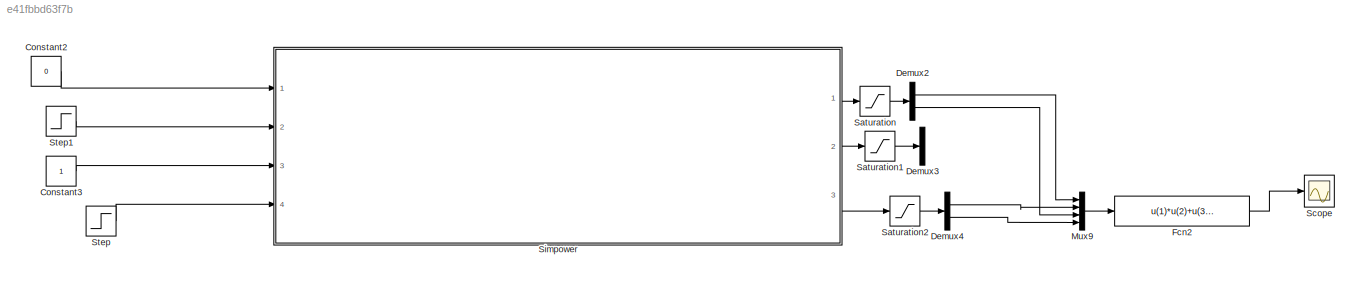
MODEL slx_e41fbbd63f7b
KIND model
CONFIG AbsTol = auto
CONFIG EnableMultiTasking = off
CONFIG FixedStep = 5e-6
CONFIG MaxStep = auto
CONFIG MinStep = 1e-5
CONFIG RelTol = 1e-3
CONFIG SampleTimeConstraint = Unconstrained
CONFIG Solver = FixedStepAuto
CONFIG SolverName = FixedStepAuto
CONFIG StartTime = 0.0
CONFIG StopTime = 12
BLOCK [Constant] Constant2
  Value = 0
BLOCK [Constant] Constant3
BLOCK [Demux] Demux2
  Outputs = 2
  Ports = [1, 2]
BLOCK [Demux] Demux3
  Outputs = 2
  Ports = [1, 2]
BLOCK [Demux] Demux4
  Outputs = 2
  Ports = [1, 2]
BLOCK [Fcn] Fcn2
  Expr = u(1)*u(2)+u(3)*u(4)
BLOCK [Mux] Mux9
  DisplayOption = bar
  Ports = [4, 1]
BLOCK [Saturate] Saturation
  LowerLimit = -1.5
  UpperLimit = 1.5
BLOCK [Saturate] Saturation1
  LowerLimit = -1.5
  UpperLimit = 1.5
BLOCK [Saturate] Saturation2
  LowerLimit = -1.5
  UpperLimit = 1.5
BLOCK [Scope] Scope
  Floating = off
  NumInputPorts = 1
  Ports = [1]
  ScopeSpecificationString = Simulink.scopes.TimeScopeBlockCfg('CurrentConfiguration', extmgr.ConfigurationSet(extmgr.Configuration('Core','General UI',true),extmgr.Configuration('Core','Source UI',true),extmgr.Configuration('Sources','WiredSimulink',true,'DataLoggingVariableName','ScopeData1'),extmgr.Configuration('Visuals','Time Domain',true,'SerializedDisplays',{struct('MinYLimReal','-0.0659','MaxYLimReal','0.7446','YLabel...<+1401ch>
BLOCK [SubSystem] Simpower
  Ports = [4, 3]
  RequestExecContextInheritance = off
BLOCK [Constant] Simpower/Constant
BLOCK [Reference] Simpower/Controlled Voltage Source  REF=powerlib/Electrical Sources/Controlled Voltage Source
  Ports = [1, 0, 0, 0, 0, 1, 1]
  SourceBlock = powerlib/Electrical Sources/Controlled Voltage Source
  SourceProductBaseCode = PS
  SourceType = Controlled Voltage Source
BLOCK [Reference] Simpower/Controlled Voltage Source1  REF=powerlib/Electrical Sources/Controlled Voltage Source
  Ports = [1, 0, 0, 0, 0, 1, 1]
  SourceBlock = powerlib/Electrical Sources/Controlled Voltage Source
  SourceProductBaseCode = PS
  SourceType = Controlled Voltage Source
BLOCK [Reference] Simpower/Controlled Voltage Source2  REF=powerlib/Electrical Sources/Controlled Voltage Source
  Ports = [1, 0, 0, 0, 0, 1, 1]
  SourceBlock = powerlib/Electrical Sources/Controlled Voltage Source
  SourceProductBaseCode = PS
  SourceType = Controlled Voltage Source
BLOCK [Reference] Simpower/Controlled Voltage Source3  REF=powerlib/Electrical Sources/Controlled Voltage Source
  Ports = [1, 0, 0, 0, 0, 1, 1]
  SourceBlock = powerlib/Electrical Sources/Controlled Voltage Source
  SourceProductBaseCode = PS
  SourceType = Controlled Voltage Source
BLOCK [Reference] Simpower/Controlled Voltage Source4  REF=powerlib/Electrical Sources/Controlled Voltage Source
  Ports = [1, 0, 0, 0, 0, 1, 1]
  SourceBlock = powerlib/Electrical Sources/Controlled Voltage Source
  SourceProductBaseCode = PS
  SourceType = Controlled Voltage Source
BLOCK [Reference] Simpower/Controlled Voltage Source5  REF=powerlib/Electrical Sources/Controlled Voltage Source
  Ports = [1, 0, 0, 0, 0, 1, 1]
  SourceBlock = powerlib/Electrical Sources/Controlled Voltage Source
  SourceProductBaseCode = PS
  SourceType = Controlled Voltage Source
BLOCK [SubSystem] Simpower/Current_calc
  Ports = [4, 1]
  RequestExecContextInheritance = off
BLOCK [Mux] Simpower/Current_calc/Mux
  DisplayOption = bar
  Inputs = 3
  Ports = [3, 1]
BLOCK [Mux] Simpower/Current_calc/Mux1
  DisplayOption = bar
  Inputs = 3
  Ports = [3, 1]
BLOCK [Mux] Simpower/Current_calc/Mux2
  DisplayOption = bar
  Inputs = 3
  Ports = [3, 1]
BLOCK [Mux] Simpower/Current_calc/Mux3
  DisplayOption = bar
  Inputs = 3
  Ports = [3, 1]
BLOCK [Mux] Simpower/Current_calc/Mux4
  DisplayOption = bar
  Inputs = 2
  Ports = [2, 1]
BLOCK [Scope] Simpower/Current_calc/Scope
  Floating = off
  NumInputPorts = 2
  Ports = [2]
  ScopeSpecificationString = Simulink.scopes.TimeScopeBlockCfg('CurrentConfiguration', extmgr.ConfigurationSet(extmgr.Configuration('Core','General UI',true),extmgr.Configuration('Core','Source UI',true),extmgr.Configuration('Sources','WiredSimulink',true,'DataLoggingVariableName','ScopeData4'),extmgr.Configuration('Visuals','Time Domain',true,'SerializedDisplays',{struct('MinYLimReal','-52.15344','MaxYLimReal','433.43523','Y...<+1423ch>
BLOCK [Sum] Simpower/Current_calc/Sum
  Inputs = |+-
  Ports = [2, 1]
BLOCK [Sum] Simpower/Current_calc/Sum1
  Inputs = |++
  Ports = [2, 1]
BLOCK [Fcn] Simpower/Current_calc/i_calc
  Expr = (u(1)*u(2))/(u(1)*u(1)+u(3)*u(3))
BLOCK [Fcn] Simpower/Current_calc/i_calc1
  Expr = (u(1)*u(2))/(u(3)*u(3)+u(1)*u(1))
BLOCK [Fcn] Simpower/Current_calc/i_calc2
  Expr = (u(3)*u(2))/(u(1)*u(1)+u(3)*u(3))
BLOCK [Fcn] Simpower/Current_calc/i_calc3
  Expr = (u(3)*u(2))/(u(3)*u(3)+u(1)*u(1))
BLOCK [Outport] Simpower/Current_calc/idqref
  VectorParamsAs1DForOutWhenUnconnected = off
BLOCK [Inport] Simpower/Current_calc/pm
BLOCK [Inport] Simpower/Current_calc/qref
  Port = 4
BLOCK [Inport] Simpower/Current_calc/vd
  Port = 2
BLOCK [Inport] Simpower/Current_calc/vq
  Port = 3
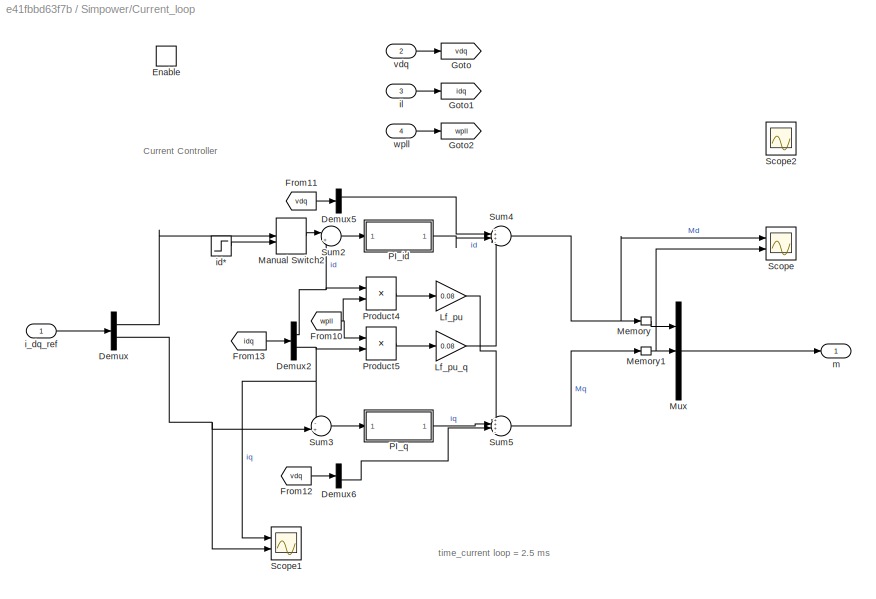
BLOCK [SubSystem] Simpower/Current_loop
  Ports = [4, 1, 1]
  RequestExecContextInheritance = off
BLOCK [Demux] Simpower/Current_loop/Demux
  Outputs = 2
  Ports = [1, 2]
BLOCK [Demux] Simpower/Current_loop/Demux2
  Outputs = 2
  Ports = [1, 2]
BLOCK [Demux] Simpower/Current_loop/Demux5
  Outputs = 2
  Ports = [1, 2]
BLOCK [Demux] Simpower/Current_loop/Demux6
  Outputs = 2
  Ports = [1, 2]
BLOCK [EnablePort] Simpower/Current_loop/Enable
  Ports = []
BLOCK [From] Simpower/Current_loop/From10
  GotoTag = wpll
BLOCK [From] Simpower/Current_loop/From11
  GotoTag = vdq
BLOCK [From] Simpower/Current_loop/From12
  GotoTag = vdq
BLOCK [From] Simpower/Current_loop/From13
  GotoTag = idq
BLOCK [Goto] Simpower/Current_loop/Goto
  GotoTag = vdq
BLOCK [Goto] Simpower/Current_loop/Goto1
  GotoTag = idq
BLOCK [Goto] Simpower/Current_loop/Goto2
  GotoTag = wpll
BLOCK [Gain] Simpower/Current_loop/Lf_pu
  Gain = 0.08
BLOCK [Gain] Simpower/Current_loop/Lf_pu_q
  Gain = 0.08
BLOCK [ManualSwitch] Simpower/Current_loop/Manual Switch2
BLOCK [Memory] Simpower/Current_loop/Memory
  InitialCondition = 1
BLOCK [Memory] Simpower/Current_loop/Memory1
BLOCK [Mux] Simpower/Current_loop/Mux
  DisplayOption = bar
  Inputs = 3
  Ports = [3, 1]
BLOCK [SubSystem] Simpower/Current_loop/PI_id
  Ports = [1, 1]
  RequestExecContextInheritance = off
BLOCK [Integrator] Simpower/Current_loop/PI_id/Integrator
  LowerSaturationLimit = -1
  Ports = [1, 1]
  UpperSaturationLimit = 1
BLOCK [Gain] Simpower/Current_loop/PI_id/KI
  Gain = 12.7200
BLOCK [Gain] Simpower/Current_loop/PI_id/KP
  Gain = 0.5399
BLOCK [Outport] Simpower/Current_loop/PI_id/Out1
  VectorParamsAs1DForOutWhenUnconnected = off
BLOCK [Scope] Simpower/Current_loop/PI_id/Scope
  Floating = off
  NumInputPorts = 2
  Ports = [2]
  ScopeSpecificationString = Simulink.scopes.TimeScopeBlockCfg('CurrentConfiguration', extmgr.ConfigurationSet(extmgr.Configuration('Core','General UI',true),extmgr.Configuration('Core','Source UI',true),extmgr.Configuration('Sources','WiredSimulink',true,'DataLoggingVariableName','ScopeData7'),extmgr.Configuration('Visuals','Time Domain',true,'SerializedDisplays',{struct('MinYLimReal','-0.19167','MaxYLimReal','1.35363','YLab...<+2112ch>
BLOCK [Scope] Simpower/Current_loop/PI_id/Scope1
  Floating = off
  NumInputPorts = 1
  Ports = [1]
  ScopeSpecificationString = Simulink.scopes.TimeScopeBlockCfg('CurrentConfiguration', extmgr.ConfigurationSet(extmgr.Configuration('Core','General UI',true),extmgr.Configuration('Core','Source UI',true),extmgr.Configuration('Sources','WiredSimulink',true,'DataLoggingVariableName','ScopeData3'),extmgr.Configuration('Visuals','Time Domain',true,'SerializedDisplays',{struct('MinYLimReal','-0.27741','MaxYLimReal','1.35832','YLab...<+1383ch>
BLOCK [Sum] Simpower/Current_loop/PI_id/Sum
  Inputs = |++
  Ports = [2, 1]
BLOCK [Inport] Simpower/Current_loop/PI_id/error
BLOCK [SubSystem] Simpower/Current_loop/PI_q
  Ports = [1, 1]
  RequestExecContextInheritance = off
BLOCK [Integrator] Simpower/Current_loop/PI_q/Integrator
  LowerSaturationLimit = -1
  Ports = [1, 1]
  UpperSaturationLimit = 1
BLOCK [Gain] Simpower/Current_loop/PI_q/KI
  Gain = 12.7200
BLOCK [Gain] Simpower/Current_loop/PI_q/KP
  Gain = 0.5399
BLOCK [Outport] Simpower/Current_loop/PI_q/Out1
  VectorParamsAs1DForOutWhenUnconnected = off
BLOCK [Scope] Simpower/Current_loop/PI_q/Scope
  Floating = off
  NumInputPorts = 2
  Ports = [2]
  ScopeSpecificationString = Simulink.scopes.TimeScopeBlockCfg('CurrentConfiguration', extmgr.ConfigurationSet(extmgr.Configuration('Core','General UI',true),extmgr.Configuration('Core','Source UI',true),extmgr.Configuration('Sources','WiredSimulink',true,'DataLoggingVariableName','ScopeData7'),extmgr.Configuration('Visuals','Time Domain',true,'SerializedDisplays',{struct('MinYLimReal','-0.07112','MaxYLimReal','0.10819','YLab...<+1446ch>
BLOCK [Sum] Simpower/Current_loop/PI_q/Sum
  Inputs = |++
  Ports = [2, 1]
BLOCK [Inport] Simpower/Current_loop/PI_q/error
BLOCK [Product] Simpower/Current_loop/Product4
  Ports = [2, 1]
BLOCK [Product] Simpower/Current_loop/Product5
  Ports = [2, 1]
BLOCK [Scope] Simpower/Current_loop/Scope
  Floating = off
  NumInputPorts = 2
  Ports = [2]
  ScopeSpecificationString = Simulink.scopes.TimeScopeBlockCfg('CurrentConfiguration', extmgr.ConfigurationSet(extmgr.Configuration('Core','General UI',true),extmgr.Configuration('Core','Source UI',true),extmgr.Configuration('Sources','WiredSimulink',true,'DataLoggingVariableName','ScopeData5'),extmgr.Configuration('Visuals','Time Domain',true,'SerializedDisplays',{struct('MinYLimReal','-11.85389','MaxYLimReal','46.04083','YL...<+2028ch>
BLOCK [Scope] Simpower/Current_loop/Scope1
  Floating = off
  NumInputPorts = 2
  Ports = [2]
  ScopeSpecificationString = Simulink.scopes.TimeScopeBlockCfg('CurrentConfiguration', extmgr.ConfigurationSet(extmgr.Configuration('Core','General UI',true),extmgr.Configuration('Core','Source UI',true),extmgr.Configuration('Sources','WiredSimulink',true,'DataLoggingVariableName','ScopeData6'),extmgr.Configuration('Visuals','Time Domain',true,'SerializedDisplays',{struct('MinYLimReal','-3.04691','MaxYLimReal','7.42216','YLab...<+1448ch>
BLOCK [Scope] Simpower/Current_loop/Scope2
  Floating = off
  NumInputPorts = 2
  Ports = [2]
  ScopeSpecificationString = Simulink.scopes.TimeScopeBlockCfg('CurrentConfiguration', extmgr.ConfigurationSet(extmgr.Configuration('Core','General UI',true),extmgr.Configuration('Core','Source UI',true),extmgr.Configuration('Sources','WiredSimulink',true,'DataLoggingVariableName','ScopeData1'),extmgr.Configuration('Visuals','Time Domain',true,'SerializedDisplays',{struct('MinYLimReal','-1.02633','MaxYLimReal','0.83238','YLab...<+1398ch>
BLOCK [Sum] Simpower/Current_loop/Sum2
  Inputs = |+-
  Ports = [2, 1]
BLOCK [Sum] Simpower/Current_loop/Sum3
  Inputs = -+|
  Ports = [2, 1]
BLOCK [Sum] Simpower/Current_loop/Sum4
  Inputs = -++-
  Ports = [4, 1]
BLOCK [Sum] Simpower/Current_loop/Sum5
  Inputs = +++-
  Ports = [4, 1]
BLOCK [Inport] Simpower/Current_loop/i_dq_ref
BLOCK [Step] Simpower/Current_loop/id*
  After = 0
  SampleTime = 0
BLOCK [Inport] Simpower/Current_loop/il
  Port = 3
BLOCK [Outport] Simpower/Current_loop/m
  VectorParamsAs1DForOutWhenUnconnected = off
BLOCK [Inport] Simpower/Current_loop/vdq
  Port = 2
BLOCK [Inport] Simpower/Current_loop/wpll
  Port = 4
BLOCK [Demux] Simpower/Demux
  Outputs = 3
  Ports = [1, 3]
BLOCK [Demux] Simpower/Demux1
  Outputs = 2
  Ports = [1, 2]
BLOCK [Demux] Simpower/Demux2
  Outputs = 3
  Ports = [1, 3]
BLOCK [Demux] Simpower/Demux3
  Outputs = 3
  Ports = [1, 3]
BLOCK [Demux] Simpower/Demux4
  Outputs = 3
  Ports = [1, 3]
BLOCK [Demux] Simpower/Demux5
  Outputs = 3
  Ports = [1, 3]
BLOCK [From] Simpower/From
  GotoTag = vod
BLOCK [From] Simpower/From1
  GotoTag = wt
BLOCK [From] Simpower/From10
  GotoTag = il
BLOCK [From] Simpower/From11
  GotoTag = vod
BLOCK [From] Simpower/From12
  GotoTag = break
BLOCK [From] Simpower/From13
  GotoTag = io
  TagVisibility = global
BLOCK [From] Simpower/From14
  GotoTag = wt
BLOCK [From] Simpower/From2
  GotoTag = vo
  TagVisibility = global
BLOCK [From] Simpower/From26
  GotoTag = w_esm
BLOCK [From] Simpower/From3
  GotoTag = wt
BLOCK [From] Simpower/From4
  GotoTag = ic
  TagVisibility = global
BLOCK [From] Simpower/From5
  GotoTag = wt
BLOCK [From] Simpower/From6
  GotoTag = wref
BLOCK [From] Simpower/From7
  GotoTag = gains_pll
BLOCK [From] Simpower/From8
  GotoTag = vod
BLOCK [From] Simpower/From9
  GotoTag = w_esm
BLOCK [Gain] Simpower/Gain2
  Gain = 563.3826
BLOCK [Gain] Simpower/Gain3
BLOCK [Goto] Simpower/Goto
  GotoTag = wt
BLOCK [Goto] Simpower/Goto1
  GotoTag = vod
BLOCK [Goto] Simpower/Goto2
  GotoTag = w_esm
BLOCK [Goto] Simpower/Goto3
  GotoTag = wref
BLOCK [Goto] Simpower/Goto4
  GotoTag = gains_pll
BLOCK [Goto] Simpower/Goto5
  GotoTag = il
BLOCK [Goto] Simpower/Goto6
  GotoTag = break
BLOCK [Reference] Simpower/Ground  REF=powerlib/Elements/Ground
  Ports = [0, 0, 0, 0, 0, 1]
  SourceBlock = powerlib/Elements/Ground
  SourceProductBaseCode = PS
  SourceType = Ground
BLOCK [Reference] Simpower/Ground2  REF=powerlib/Elements/Ground
  Ports = [0, 0, 0, 0, 0, 1]
  SourceBlock = powerlib/Elements/Ground
  SourceProductBaseCode = PS
  SourceType = Ground
BLOCK [Memory] Simpower/Memory
  InitialCondition = 1
BLOCK [Memory] Simpower/Memory1
BLOCK [Memory] Simpower/Memory2
  InitialCondition = 1
BLOCK [Memory] Simpower/Memory3
BLOCK [Memory] Simpower/Memory4
  InitialCondition = 1
BLOCK [Memory] Simpower/Memory5
BLOCK [Mux] Simpower/Mux
  DisplayOption = bar
  Inputs = 2
  Ports = [2, 1]
BLOCK [Mux] Simpower/Mux1
  DisplayOption = bar
  Inputs = 2
  Ports = [2, 1]
BLOCK [Mux] Simpower/Mux2
  DisplayOption = bar
  Inputs = 2
  Ports = [2, 1]
BLOCK [Outport] Simpower/Out1
  VectorParamsAs1DForOutWhenUnconnected = off
BLOCK [Outport] Simpower/Out2
  Port = 2
  VectorParamsAs1DForOutWhenUnconnected = off
BLOCK [Outport] Simpower/Out3
  Port = 3
  VectorParamsAs1DForOutWhenUnconnected = off
BLOCK [SubSystem] Simpower/PLL
  Ports = [3, 2]
  RequestExecContextInheritance = off
BLOCK [SubSystem] Simpower/PLL/Clasic_pll
  Ports = [3, 1, 0, 0, 0, 0, 0, 1]
  RequestExecContextInheritance = off
  TreatAsAtomicUnit = on
BLOCK [ActionPort] Simpower/PLL/Clasic_pll/Action Port
BLOCK [Inport] Simpower/PLL/Clasic_pll/In1
  Port = 3
BLOCK [SubSystem] Simpower/PLL/Clasic_pll/PLL
  Ports = [3, 1]
  RequestExecContextInheritance = off
BLOCK [Demux] Simpower/PLL/Clasic_pll/PLL/Demux
  Outputs = 2
  Ports = [1, 2]
BLOCK [Demux] Simpower/PLL/Clasic_pll/PLL/Demux1
  Outputs = 2
  Ports = [1, 2]
BLOCK [Inport] Simpower/PLL/Clasic_pll/PLL/In1
  Port = 3
BLOCK [Mux] Simpower/PLL/Clasic_pll/PLL/Mux2
  DisplayOption = bar
  Inputs = 2
  Ports = [2, 1]
BLOCK [SubSystem] Simpower/PLL/Clasic_pll/PLL/PI_Vqg
  Ports = [2, 1]
  RequestExecContextInheritance = off
BLOCK [Demux] Simpower/PLL/Clasic_pll/PLL/PI_Vqg/Demux
  Outputs = 2
  Ports = [1, 2]
BLOCK [Integrator] Simpower/PLL/Clasic_pll/PLL/PI_Vqg/Integrator
  Ports = [1, 1]
BLOCK [Product] Simpower/PLL/Clasic_pll/PLL/PI_Vqg/Product
  Ports = [2, 1]
BLOCK [Product] Simpower/PLL/Clasic_pll/PLL/PI_Vqg/Product1
  Ports = [2, 1]
BLOCK [Sum] Simpower/PLL/Clasic_pll/PLL/PI_Vqg/Sum
  Inputs = |++
  Ports = [2, 1]
BLOCK [Outport] Simpower/PLL/Clasic_pll/PLL/PI_Vqg/d_ws
  VectorParamsAs1DForOutWhenUnconnected = off
BLOCK [Inport] Simpower/PLL/Clasic_pll/PLL/PI_Vqg/error
BLOCK [Inport] Simpower/PLL/Clasic_pll/PLL/PI_Vqg/kp_ki
  Port = 2
BLOCK [Saturate] Simpower/PLL/Clasic_pll/PLL/Saturation
  LowerLimit = eps
  UpperLimit = inf
BLOCK [Scope] Simpower/PLL/Clasic_pll/PLL/Scope1
  Floating = off
  NumInputPorts = 1
  Ports = [1]
  ScopeSpecificationString = Simulink.scopes.TimeScopeBlockCfg('CurrentConfiguration', extmgr.ConfigurationSet(extmgr.Configuration('Core','General UI',true),extmgr.Configuration('Core','Source UI',true),extmgr.Configuration('Sources','WiredSimulink',true,'DataLoggingVariableName','ScopeData1'),extmgr.Configuration('Visuals','Time Domain',true,'SerializedDisplays',{struct('MinYLimReal','-0.01858','MaxYLimReal','0.01831','YLab...<+1449ch>
BLOCK [Sum] Simpower/PLL/Clasic_pll/PLL/Sum
  Inputs = |++
  Ports = [2, 1]
BLOCK [Terminator] Simpower/PLL/Clasic_pll/PLL/Terminator
BLOCK [Terminator] Simpower/PLL/Clasic_pll/PLL/Terminator1
BLOCK [Inport] Simpower/PLL/Clasic_pll/PLL/Vdq+
BLOCK [Inport] Simpower/PLL/Clasic_pll/PLL/wref
  Port = 2
BLOCK [Outport] Simpower/PLL/Clasic_pll/PLL/ws
  VectorParamsAs1DForOutWhenUnconnected = off
BLOCK [Inport] Simpower/PLL/Clasic_pll/Vodq
BLOCK [Outport] Simpower/PLL/Clasic_pll/w
  VectorParamsAs1DForOutWhenUnconnected = off
BLOCK [Inport] Simpower/PLL/Clasic_pll/wref
  Port = 2
BLOCK [Display] Simpower/PLL/Display
  Decimation = 1
  Ports = [1]
BLOCK [Gain] Simpower/PLL/Gain
  Gain = 2*pi*50
BLOCK [Merge] Simpower/PLL/M_w
  Ports = [2, 1]
BLOCK [Memory] Simpower/PLL/Memory
  InitialCondition = [ 0.001 0.0001]
BLOCK [SubSystem] Simpower/PLL/PLL_tang
  Ports = [3, 2, 0, 0, 0, 0, 0, 1]
  RequestExecContextInheritance = off
BLOCK [ActionPort] Simpower/PLL/PLL_tang/Action Port
BLOCK [Trigonometry] Simpower/PLL/PLL_tang/Atan2
  Operator = atan2
  Ports = [2, 1]
BLOCK [Constant] Simpower/PLL/PLL_tang/Constant
  OutDataTypeStr = double
  Value = 0
BLOCK [Demux] Simpower/PLL/PLL_tang/Demux
  Outputs = 2
  Ports = [1, 2]
BLOCK [Inport] Simpower/PLL/PLL_tang/In1
  Port = 3
BLOCK [SubSystem] Simpower/PLL/PLL_tang/LPF_vod
  Ports = [1, 1]
  RequestExecContextInheritance = off
BLOCK [Fcn] Simpower/PLL/PLL_tang/LPF_vod/Fcn
  Expr = - 500*u(1) + 500*u(2)
BLOCK [Integrator] Simpower/PLL/PLL_tang/LPF_vod/Integrator
  Ports = [1, 1]
BLOCK [Mux] Simpower/PLL/PLL_tang/LPF_vod/Mux
  DisplayOption = bar
  Inputs = 2
  Ports = [2, 1]
BLOCK [Inport] Simpower/PLL/PLL_tang/LPF_vod/sig
BLOCK [Outport] Simpower/PLL/PLL_tang/LPF_vod/sigf
  VectorParamsAs1DForOutWhenUnconnected = off
BLOCK [SubSystem] Simpower/PLL/PLL_tang/LPF_voq
  Ports = [1, 1]
  RequestExecContextInheritance = off
BLOCK [Fcn] Simpower/PLL/PLL_tang/LPF_voq/Fcn
  Expr = - 500*u(1) +500*u(2)
BLOCK [Integrator] Simpower/PLL/PLL_tang/LPF_voq/Integrator
  Ports = [1, 1]
BLOCK [Mux] Simpower/PLL/PLL_tang/LPF_voq/Mux
  DisplayOption = bar
  Inputs = 2
  Ports = [2, 1]
BLOCK [Inport] Simpower/PLL/PLL_tang/LPF_voq/sig
BLOCK [Outport] Simpower/PLL/PLL_tang/LPF_voq/sigf
  VectorParamsAs1DForOutWhenUnconnected = off
BLOCK [SubSystem] Simpower/PLL/PLL_tang/PI_pll
  Ports = [2, 1]
  RequestExecContextInheritance = off
BLOCK [Demux] Simpower/PLL/PLL_tang/PI_pll/Demux
  Outputs = 2
  Ports = [1, 2]
BLOCK [Inport] Simpower/PLL/PLL_tang/PI_pll/In1
  Port = 2
BLOCK [Integrator] Simpower/PLL/PLL_tang/PI_pll/Integrator
  Ports = [1, 1]
BLOCK [Product] Simpower/PLL/PLL_tang/PI_pll/Product
  Ports = [2, 1]
BLOCK [Product] Simpower/PLL/PLL_tang/PI_pll/Product1
  Ports = [2, 1]
BLOCK [Sum] Simpower/PLL/PLL_tang/PI_pll/Sum
  Inputs = |++
  Ports = [2, 1]
BLOCK [Inport] Simpower/PLL/PLL_tang/PI_pll/error
BLOCK [SubSystem] Simpower/PLL/PLL_tang/PI_pll/start
  Commented = on
  Ports = [1, 1]
  RequestExecContextInheritance = off
BLOCK [Inport] Simpower/PLL/PLL_tang/PI_pll/start/In1
BLOCK [Outport] Simpower/PLL/PLL_tang/PI_pll/start/Out1
  VectorParamsAs1DForOutWhenUnconnected = off
BLOCK [Product] Simpower/PLL/PLL_tang/PI_pll/start/Product
  Ports = [2, 1]
BLOCK [Step] Simpower/PLL/PLL_tang/PI_pll/start/Step
  SampleTime = 0
  Time = start
BLOCK [Outport] Simpower/PLL/PLL_tang/PI_pll/u
  VectorParamsAs1DForOutWhenUnconnected = off
BLOCK [Scope] Simpower/PLL/PLL_tang/Scope
  Floating = off
  NumInputPorts = 2
  Ports = [2]
  ScopeSpecificationString = Simulink.scopes.TimeScopeBlockCfg('CurrentConfiguration', extmgr.ConfigurationSet(extmgr.Configuration('Core','General UI',true),extmgr.Configuration('Core','Source UI',true),extmgr.Configuration('Sources','WiredSimulink',true,'DataLoggingVariableName','ScopeData5'),extmgr.Configuration('Visuals','Time Domain',true,'SerializedDisplays',{struct('MinYLimReal','-0.24454','MaxYLimReal','1.15735','YLab...<+1376ch>
BLOCK [Scope] Simpower/PLL/PLL_tang/Scope1
  Floating = off
  NumInputPorts = 2
  Ports = [2]
  ScopeSpecificationString = Simulink.scopes.TimeScopeBlockCfg('CurrentConfiguration', extmgr.ConfigurationSet(extmgr.Configuration('Core','General UI',true),extmgr.Configuration('Core','Source UI',true),extmgr.Configuration('Sources','WiredSimulink',true,'DataLoggingVariableName','ScopeData6'),extmgr.Configuration('Visuals','Time Domain',true,'SerializedDisplays',{struct('MinYLimReal','0.9981','MaxYLimReal','1.00058','YLabel...<+2018ch>
BLOCK [Sum] Simpower/PLL/PLL_tang/Sum
  Inputs = |++
  Ports = [2, 1]
BLOCK [Inport] Simpower/PLL/PLL_tang/Vo_dq
  Port = 2
BLOCK [Outport] Simpower/PLL/PLL_tang/W_pll
  VectorParamsAs1DForOutWhenUnconnected = off
BLOCK [Outport] Simpower/PLL/PLL_tang/dw
  Port = 2
  VectorParamsAs1DForOutWhenUnconnected = off
BLOCK [Sum] Simpower/PLL/PLL_tang/omega_pll
  Inputs = ++|
  Ports = [2, 1]
BLOCK [Inport] Simpower/PLL/PLL_tang/wref
BLOCK [Sum] Simpower/PLL/Sum2
  Inputs = +-
  Ports = [2, 1]
BLOCK [SwitchCase] Simpower/PLL/Switch Case
  CaseConditions = {1,0}
  Ports = [1, 2]
  ShowDefaultCase = off
BLOCK [Terminator] Simpower/PLL/Terminator
BLOCK [Constant] Simpower/PLL/case_pll
BLOCK [Inport] Simpower/PLL/gains
  Port = 3
BLOCK [Outport] Simpower/PLL/theta
  VectorParamsAs1DForOutWhenUnconnected = off
BLOCK [Integrator] Simpower/PLL/theta_
  InitialCondition = -pi/2
  Ports = [1, 1]
BLOCK [Inport] Simpower/PLL/vodq
  Port = 2
BLOCK [Outport] Simpower/PLL/w
  Port = 2
  VectorParamsAs1DForOutWhenUnconnected = off
BLOCK [Inport] Simpower/PLL/wref
BLOCK [SubSystem] Simpower/SOFIE 2
  Ports = [3, 2]
  RequestExecContextInheritance = off
BLOCK [Gain] Simpower/SOFIE 2/Gain
  Gain = 20
BLOCK [Gain] Simpower/SOFIE 2/Gain7
  Gain = 3.5*2
BLOCK [Mux] Simpower/SOFIE 2/Mux
  DisplayOption = bar
  Inputs = 2
  Ports = [2, 1]
BLOCK [Outport] Simpower/SOFIE 2/P*
  VectorParamsAs1DForOutWhenUnconnected = off
BLOCK [Outport] Simpower/SOFIE 2/PLL_gains
  Port = 2
  VectorParamsAs1DForOutWhenUnconnected = off
BLOCK [Scope] Simpower/SOFIE 2/Scope
  Floating = off
  NumInputPorts = 2
  Ports = [2]
  ScopeSpecificationString = Simulink.scopes.TimeScopeBlockCfg('CurrentConfiguration', extmgr.ConfigurationSet(extmgr.Configuration('Core','General UI',true),extmgr.Configuration('Core','Source UI',true),extmgr.Configuration('Sources','WiredSimulink',true,'DataLoggingVariableName','ScopeData2'),extmgr.Configuration('Visuals','Time Domain',true,'SerializedDisplays',{struct('MinYLimReal','0.9998','MaxYLimReal','1.00068','YLabel...<+1489ch>
BLOCK [Scope] Simpower/SOFIE 2/Scope1
  Floating = off
  NumInputPorts = 1
  Ports = [1]
  ScopeSpecificationString = Simulink.scopes.TimeScopeBlockCfg('CurrentConfiguration', extmgr.ConfigurationSet(extmgr.Configuration('Core','General UI',true),extmgr.Configuration('Core','Source UI',true),extmgr.Configuration('Sources','WiredSimulink',true,'DataLoggingVariableName','ScopeData1'),extmgr.Configuration('Visuals','Time Domain',true,'SerializedDisplays',{struct('MinYLimReal','-829.91141','MaxYLimReal','1112.94484',...<+1400ch>
BLOCK [SubSystem] Simpower/SOFIE 2/Second order low pass filter
  Ports = [3, 2]
  RequestExecContextInheritance = off
BLOCK [Fcn] Simpower/SOFIE 2/Second order low pass filter/Fcn
  Expr = u(1)*u(4)^2-u(2)*(2*u(5)*u(4))-u(3)*u(4)^2
BLOCK [Integrator] Simpower/SOFIE 2/Second order low pass filter/Integrator
  Ports = [1, 1]
BLOCK [Integrator] Simpower/SOFIE 2/Second order low pass filter/Integrator1
  InitialCondition = 1
  Ports = [1, 1]
BLOCK [Mux] Simpower/SOFIE 2/Second order low pass filter/Mux
  DisplayOption = bar
  Inputs = 5
  Ports = [5, 1]
BLOCK [Scope] Simpower/SOFIE 2/Second order low pass filter/Scope
  Floating = off
  NumInputPorts = 2
  Ports = [2]
  ScopeSpecificationString = Simulink.scopes.TimeScopeBlockCfg('CurrentConfiguration', extmgr.ConfigurationSet(extmgr.Configuration('Core','General UI',true),extmgr.Configuration('Core','Source UI',true),extmgr.Configuration('Sources','WiredSimulink',true,'DataLoggingVariableName','ScopeData2'),extmgr.Configuration('Visuals','Time Domain',true,'SerializedDisplays',{struct('MinYLimReal','0.97336','MaxYLimReal','1.23975','YLabe...<+2015ch>
BLOCK [Inport] Simpower/SOFIE 2/Second order low pass filter/d_pll
BLOCK [Outport] Simpower/SOFIE 2/Second order low pass filter/d`p
  Port = 2
  VectorParamsAs1DForOutWhenUnconnected = off
BLOCK [Outport] Simpower/SOFIE 2/Second order low pass filter/wf
  VectorParamsAs1DForOutWhenUnconnected = off
BLOCK [Inport] Simpower/SOFIE 2/Second order low pass filter/wn
  Port = 2
BLOCK [Inport] Simpower/SOFIE 2/Second order low pass filter/zeta
  Port = 3
BLOCK [Sum] Simpower/SOFIE 2/Sum
  Inputs = |+-
  Ports = [2, 1]
BLOCK [Sum] Simpower/SOFIE 2/Sum7
  Inputs = ++-
  Ports = [3, 1]
BLOCK [Constant] Simpower/SOFIE 2/ki_pll
  Value = 29.4731
BLOCK [Constant] Simpower/SOFIE 2/kp_pll
  Value = 0.5305
BLOCK [Inport] Simpower/SOFIE 2/pref
  Port = 2
BLOCK [Constant] Simpower/SOFIE 2/wn
  Value = 12.2311
BLOCK [Inport] Simpower/SOFIE 2/wpll
BLOCK [Inport] Simpower/SOFIE 2/wref
  Port = 3
BLOCK [Constant] Simpower/SOFIE 2/zeta
  Value = 0.94
BLOCK [Saturate] Simpower/Saturation
  LowerLimit = -2
  UpperLimit = 2
BLOCK [Scope] Simpower/Scope1
  Floating = off
  NumInputPorts = 1
  Ports = [1]
  ScopeSpecificationString = Simulink.scopes.TimeScopeBlockCfg('CurrentConfiguration', extmgr.ConfigurationSet(extmgr.Configuration('Core','General UI',true),extmgr.Configuration('Core','Source UI',true),extmgr.Configuration('Sources','WiredSimulink',true,'DataLoggingVariableName','ScopeData5'),extmgr.Configuration('Visuals','Time Domain',true,'SerializedDisplays',{struct('MinYLimReal','-3.17778','MaxYLimReal','2.98437','YLab...<+1394ch>
BLOCK [Scope] Simpower/Scope2
  Floating = off
  NumInputPorts = 1
  Ports = [1]
  ScopeSpecificationString = Simulink.scopes.TimeScopeBlockCfg('CurrentConfiguration', extmgr.ConfigurationSet(extmgr.Configuration('Core','General UI',true),extmgr.Configuration('Core','Source UI',true),extmgr.Configuration('Sources','WiredSimulink',true,'DataLoggingVariableName','ScopeData6'),extmgr.Configuration('Visuals','Time Domain',true,'SerializedDisplays',{struct('MinYLimReal','-1.5351','MaxYLimReal','1.44482','YLabe...<+1453ch>
BLOCK [Scope] Simpower/Scope3
  Floating = off
  NumInputPorts = 1
  Ports = [1]
  ScopeSpecificationString = Simulink.scopes.TimeScopeBlockCfg('CurrentConfiguration', extmgr.ConfigurationSet(extmgr.Configuration('Core','General UI',true),extmgr.Configuration('Core','Source UI',true),extmgr.Configuration('Sources','WiredSimulink',true,'DataLoggingVariableName','ScopeData7'),extmgr.Configuration('Visuals','Time Domain',true,'SerializedDisplays',{struct('MinYLimReal','-16.76989','MaxYLimReal','5.4064','YLab...<+1378ch>
BLOCK [Scope] Simpower/Scope4
  Floating = off
  NumInputPorts = 1
  Ports = [1]
  ScopeSpecificationString = Simulink.scopes.TimeScopeBlockCfg('CurrentConfiguration', extmgr.ConfigurationSet(extmgr.Configuration('Core','General UI',true),extmgr.Configuration('Core','Source UI',true),extmgr.Configuration('Sources','WiredSimulink',true,'DataLoggingVariableName','ScopeData8'),extmgr.Configuration('Visuals','Time Domain',true,'SerializedDisplays',{struct('MinYLimReal','-60396.87084','MaxYLimReal','60512.2358...<+1808ch>
BLOCK [Scope] Simpower/Scope5
  Floating = off
  NumInputPorts = 1
  Ports = [1]
  ScopeSpecificationString = Simulink.scopes.TimeScopeBlockCfg('CurrentConfiguration', extmgr.ConfigurationSet(extmgr.Configuration('Core','General UI',true),extmgr.Configuration('Core','Source UI',true),extmgr.Configuration('Sources','WiredSimulink',true,'DataLoggingVariableName','ScopeData3'),extmgr.Configuration('Visuals','Time Domain',true,'SerializedDisplays',{struct('MinYLimReal','-3.62586','MaxYLimReal','4.07075','YLab...<+1470ch>
BLOCK [Scope] Simpower/Scope6
  Floating = off
  NumInputPorts = 1
  Ports = [1]
  ScopeSpecificationString = Simulink.scopes.TimeScopeBlockCfg('CurrentConfiguration', extmgr.ConfigurationSet(extmgr.Configuration('Core','General UI',true),extmgr.Configuration('Core','Source UI',true),extmgr.Configuration('Sources','WiredSimulink',true,'DataLoggingVariableName','ScopeData1'),extmgr.Configuration('Visuals','Time Domain',true,'SerializedDisplays',{struct('MinYLimReal','-60396.87084','MaxYLimReal','60512.2358...<+1808ch>
BLOCK [Scope] Simpower/Scope7
  Floating = off
  NumInputPorts = 2
  Ports = [2]
  ScopeSpecificationString = Simulink.scopes.TimeScopeBlockCfg('CurrentConfiguration', extmgr.ConfigurationSet(extmgr.Configuration('Core','General UI',true),extmgr.Configuration('Core','Source UI',true),extmgr.Configuration('Sources','WiredSimulink',true,'DataLoggingVariableName','ScopeData1'),extmgr.Configuration('Visuals','Time Domain',true,'SerializedDisplays',{struct('MinYLimReal','-147.11168','MaxYLimReal','1308.29713',...<+2091ch>
BLOCK [Scope] Simpower/Scope8
  Floating = off
  NumInputPorts = 1
  Ports = [1]
  ScopeSpecificationString = Simulink.scopes.TimeScopeBlockCfg('CurrentConfiguration', extmgr.ConfigurationSet(extmgr.Configuration('Core','General UI',true),extmgr.Configuration('Core','Source UI',true),extmgr.Configuration('Sources','WiredSimulink',true,'DataLoggingVariableName','ScopeData2'),extmgr.Configuration('Visuals','Time Domain',true,'SerializedDisplays',{struct('MinYLimReal','-250001.04687','MaxYLimReal','250001.04...<+1512ch>
BLOCK [Step] Simpower/Step
  SampleTime = 0
  Time = 2
BLOCK [Switch] Simpower/Switch1
  Criteria = u2 > Threshold
  InputSameDT = off
  SaturateOnIntegerOverflow = off
  Threshold = 0.5
BLOCK [Reference] Simpower/Three-Phase Series RLC Branch  REF=powerlib/Elements/Three-Phase Series RLC Branch
  AttributesFormatString = \n
  Ports = [0, 0, 0, 0, 0, 3, 3]
  SourceBlock = powerlib/Elements/Three-Phase Series RLC Branch
  SourceProductBaseCode = PS
  SourceType = Three-Phase Series RLC Branch
BLOCK [Reference] Simpower/Three-Phase Series RLC Branch2  REF=powerlib/Elements/Three-Phase Series RLC Branch
  AttributesFormatString = \n
  Ports = [0, 0, 0, 0, 0, 3, 3]
  SourceBlock = powerlib/Elements/Three-Phase Series RLC Branch
  SourceProductBaseCode = PS
  SourceType = Three-Phase Series RLC Branch
BLOCK [Reference] Simpower/Three-Phase Sine Generator  REF=powerlib_meascontrol/Pulse & Signal Generators/Three-Phase Sine Generator
  Ports = [3, 2]
  SourceBlock = powerlib_meascontrol/Pulse & Signal Generators/Three-Phase Sine Generator
  SourceProductBaseCode = PS
  SourceType = Three-phase Sine Generator
BLOCK [Reference] Simpower/Three-Phase V-I Measurement  REF=powerlib/Measurements/Three-Phase V-I Measurement
  Ports = [0, 0, 0, 0, 0, 3, 3]
  SourceBlock = powerlib/Measurements/Three-Phase V-I Measurement
  SourceProductBaseCode = PS
  SourceType = Three-Phase VI Measurement
BLOCK [Reference] Simpower/Three-Phase V-I Measurement1  REF=powerlib/Measurements/Three-Phase V-I Measurement
  Ports = [0, 0, 0, 0, 0, 3, 3]
  SourceBlock = powerlib/Measurements/Three-Phase V-I Measurement
  SourceProductBaseCode = PS
  SourceType = Three-Phase VI Measurement
BLOCK [Gain] Simpower/Vb_pp
  Gain = 563.3826
BLOCK [Reference] Simpower/abc to dq0  REF=powerlib_meascontrol/Transformations/abc to dq0
  Ports = [2, 1]
  SourceBlock = powerlib_meascontrol/Transformations/abc to dq0
  SourceProductBaseCode = PS
  SourceType = abc to dq0 Transformation
BLOCK [Reference] Simpower/abc to dq1  REF=powerlib_meascontrol/Transformations/abc to dq0
  Ports = [2, 1]
  SourceBlock = powerlib_meascontrol/Transformations/abc to dq0
  SourceProductBaseCode = PS
  SourceType = abc to dq0 Transformation
BLOCK [Reference] Simpower/abc to dq2  REF=powerlib_meascontrol/Transformations/abc to dq0
  Ports = [2, 1]
  SourceBlock = powerlib_meascontrol/Transformations/abc to dq0
  SourceProductBaseCode = PS
  SourceType = abc to dq0 Transformation
BLOCK [Reference] Simpower/dq0 to abc  REF=powerlib_meascontrol/Transformations/dq0 to abc
  Ports = [2, 1]
  SourceBlock = powerlib_meascontrol/Transformations/dq0 to abc
  SourceProductBaseCode = PS
  SourceType = dq0 to abc Transformation
BLOCK [Gain] Simpower/frequency
  Gain = 50
BLOCK [Reference] Simpower/powergui  REF=powerlib/powergui
  Ports = []
  Priority = 1
  SourceBlock = powerlib/powergui
  SourceProductBaseCode = PS
  SourceType = PSB option menu block
BLOCK [Inport] Simpower/pref
  Port = 2
BLOCK [Inport] Simpower/qref
BLOCK [Inport] Simpower/wg
  Port = 4
BLOCK [Inport] Simpower/wref
  Port = 3
BLOCK [Step] Step
  After = 1-0.01
  Before = 1
  SampleTime = 0
  Time = 4
BLOCK [Step] Step1
  After = 0.1
  SampleTime = 0
  Time = 8
ANNOTATION Simpower: Second-order filter-based inertia emulation (SOFIE) for low inertia power systems
ANNOTATION Simpower: Corresponding author (e-mail: <email>) D. A. Aragon-Sotelo and S. Ceballos are with Tecnalia, Basque Research and Technology Alliance (BRTA), Parque Tecnológico de Bizkaia, 48160 Derio, Spain E. Unamuno and J. A. Barrena are with the Electronics and Computing Department, Mondragon Unibertsitatea, 20500 Arrasate-Mondragón, S
ANNOTATION Simpower: D. A. Aragón-Sotelo*, E. Unamuno, S. Ceballos, J. A. Barrena
ANNOTATION Simpower/Current_loop: Current Controller
ANNOTATION Simpower/Current_loop: time_current loop = 2.5 ms
ANNOTATION Simpower/PLL/PLL_tang/PI_pll: 0.280199718443820
ANNOTATION Simpower/PLL/PLL_tang/PI_pll: 8.791017962377130
ANNOTATION Simpower/SOFIE 2: parameters calculated with eq: 15 and 16
ANNOTATION Simpower/SOFIE 2: tpll=0.01 s
LINE Constant2:1 -> Simpower:1
LINE Constant3:1 -> Simpower:3
LINE Demux2:1 -> Mux9:1
LINE Demux2:2 -> Mux9:3
LINE Demux4:1 -> Mux9:2
LINE Demux4:2 -> Mux9:4
LINE Fcn2:1 -> Scope:1
LINE Mux9:1 -> Fcn2:1
LINE Saturation1:1 -> Demux3:1
LINE Saturation2:1 -> Demux4:1
LINE Saturation:1 -> Demux2:1
LINE Simpower/Constant:1 -> Simpower/Vb_pp:1
LINE Simpower/Current_calc/Mux1:1 -> Simpower/Current_calc/i_calc1:1
LINE Simpower/Current_calc/Mux2:1 -> Simpower/Current_calc/i_calc2:1
LINE Simpower/Current_calc/Mux3:1 -> Simpower/Current_calc/i_calc3:1
LINE Simpower/Current_calc/Mux4:1 -> Simpower/Current_calc/idqref:1
LINE Simpower/Current_calc/Mux:1 -> Simpower/Current_calc/i_calc:1
LINE Simpower/Current_calc/Sum1:1 -> Simpower/Current_calc/Mux4:2
NET Simpower/Current_calc/Sum:1 -> Simpower/Current_calc/Mux4:1, Simpower/Current_calc/Scope:2
LINE Simpower/Current_calc/i_calc1:1 -> Simpower/Current_calc/Sum:2
LINE Simpower/Current_calc/i_calc2:1 -> Simpower/Current_calc/Sum1:1
LINE Simpower/Current_calc/i_calc3:1 -> Simpower/Current_calc/Sum1:2
LINE Simpower/Current_calc/i_calc:1 -> Simpower/Current_calc/Sum:1
NET Simpower/Current_calc/pm:1 -> Simpower/Current_calc/Mux2:2, Simpower/Current_calc/Mux:2, Simpower/Current_calc/Scope:1
NET Simpower/Current_calc/qref:1 -> Simpower/Current_calc/Mux1:2, Simpower/Current_calc/Mux3:2
NET Simpower/Current_calc/vd:1 -> Simpower/Current_calc/Mux1:3, Simpower/Current_calc/Mux2:1, Simpower/Current_calc/Mux3:3, Simpower/Current_calc/Mux:1
NET Simpower/Current_calc/vq:1 -> Simpower/Current_calc/Mux1:1, Simpower/Current_calc/Mux2:3, Simpower/Current_calc/Mux3:1, Simpower/Current_calc/Mux:3
LINE Simpower/Current_calc:1 -> Simpower/Saturation:1
NET Simpower/Current_loop/Demux2:1 -> Simpower/Current_loop/Product4:1, Simpower/Current_loop/Sum2:2
NET Simpower/Current_loop/Demux2:2 -> Simpower/Current_loop/Product5:2, Simpower/Current_loop/Scope1:1, Simpower/Current_loop/Sum3:1
LINE Simpower/Current_loop/Demux5:1 -> Simpower/Current_loop/Sum4:2
LINE Simpower/Current_loop/Demux6:2 -> Simpower/Current_loop/Sum5:3
LINE Simpower/Current_loop/Demux:1 -> Simpower/Current_loop/Manual Switch2:1
NET Simpower/Current_loop/Demux:2 -> Simpower/Current_loop/Scope1:2, Simpower/Current_loop/Sum3:2
NET Simpower/Current_loop/From10:1 -> Simpower/Current_loop/Product4:2, Simpower/Current_loop/Product5:1
LINE Simpower/Current_loop/From11:1 -> Simpower/Current_loop/Demux5:1
LINE Simpower/Current_loop/From12:1 -> Simpower/Current_loop/Demux6:1
LINE Simpower/Current_loop/From13:1 -> Simpower/Current_loop/Demux2:1
LINE Simpower/Current_loop/Lf_pu:1 -> Simpower/Current_loop/Sum5:1
LINE Simpower/Current_loop/Lf_pu_q:1 -> Simpower/Current_loop/Sum4:4
LINE Simpower/Current_loop/Manual Switch2:1 -> Simpower/Current_loop/Sum2:1
NET Simpower/Current_loop/Memory1:1 -> Simpower/Current_loop/Mux:2, Simpower/Current_loop/Scope:2
LINE Simpower/Current_loop/Memory:1 -> Simpower/Current_loop/Mux:1
LINE Simpower/Current_loop/Mux:1 -> Simpower/Current_loop/m:1
NET Simpower/Current_loop/PI_id/Integrator:1 -> Simpower/Current_loop/PI_id/Scope:2, Simpower/Current_loop/PI_id/Sum:2
LINE Simpower/Current_loop/PI_id/KI:1 -> Simpower/Current_loop/PI_id/Integrator:1
LINE Simpower/Current_loop/PI_id/KP:1 -> Simpower/Current_loop/PI_id/Sum:1
NET Simpower/Current_loop/PI_id/Sum:1 -> Simpower/Current_loop/PI_id/Out1:1, Simpower/Current_loop/PI_id/Scope:1
NET Simpower/Current_loop/PI_id/error:1 -> Simpower/Current_loop/PI_id/KI:1, Simpower/Current_loop/PI_id/KP:1, Simpower/Current_loop/PI_id/Scope1:1
LINE Simpower/Current_loop/PI_id:1 -> Simpower/Current_loop/Sum4:3
NET Simpower/Current_loop/PI_q/Integrator:1 -> Simpower/Current_loop/PI_q/Scope:1, Simpower/Current_loop/PI_q/Sum:2
LINE Simpower/Current_loop/PI_q/KI:1 -> Simpower/Current_loop/PI_q/Integrator:1
LINE Simpower/Current_loop/PI_q/KP:1 -> Simpower/Current_loop/PI_q/Sum:1
LINE Simpower/Current_loop/PI_q/Sum:1 -> Simpower/Current_loop/PI_q/Out1:1
NET Simpower/Current_loop/PI_q/error:1 -> Simpower/Current_loop/PI_q/KI:1, Simpower/Current_loop/PI_q/KP:1, Simpower/Current_loop/PI_q/Scope:2
LINE Simpower/Current_loop/PI_q:1 -> Simpower/Current_loop/Sum5:2
LINE Simpower/Current_loop/Product4:1 -> Simpower/Current_loop/Lf_pu:1
LINE Simpower/Current_loop/Product5:1 -> Simpower/Current_loop/Lf_pu_q:1
LINE Simpower/Current_loop/Sum2:1 -> Simpower/Current_loop/PI_id:1
LINE Simpower/Current_loop/Sum3:1 -> Simpower/Current_loop/PI_q:1
NET Simpower/Current_loop/Sum4:1 -> Simpower/Current_loop/Memory:1, Simpower/Current_loop/Scope:1
LINE Simpower/Current_loop/Sum5:1 -> Simpower/Current_loop/Memory1:1
LINE Simpower/Current_loop/i_dq_ref:1 -> Simpower/Current_loop/Demux:1
LINE Simpower/Current_loop/id*:1 -> Simpower/Current_loop/Manual Switch2:2
LINE Simpower/Current_loop/il:1 -> Simpower/Current_loop/Goto1:1
LINE Simpower/Current_loop/vdq:1 -> Simpower/Current_loop/Goto:1
LINE Simpower/Current_loop/wpll:1 -> Simpower/Current_loop/Goto2:1
LINE Simpower/Current_loop:1 -> Simpower/Switch1:1
LINE Simpower/Demux1:1 -> Simpower/Current_calc:2
LINE Simpower/Demux1:2 -> Simpower/Current_calc:3
LINE Simpower/Demux2:1 -> Simpower/Memory4:1
LINE Simpower/Demux2:2 -> Simpower/Memory5:1
LINE Simpower/Demux3:1 -> Simpower/Memory:1
LINE Simpower/Demux3:2 -> Simpower/Memory1:1
LINE Simpower/Demux4:1 -> Simpower/Memory2:1
LINE Simpower/Demux4:2 -> Simpower/Memory3:1
LINE Simpower/Demux5:1 -> Simpower/Controlled Voltage Source5:1
LINE Simpower/Demux5:2 -> Simpower/Controlled Voltage Source4:1
LINE Simpower/Demux5:3 -> Simpower/Controlled Voltage Source3:1
LINE Simpower/Demux:1 -> Simpower/Controlled Voltage Source2:1
LINE Simpower/Demux:2 -> Simpower/Controlled Voltage Source1:1
LINE Simpower/Demux:3 -> Simpower/Controlled Voltage Source:1
LINE Simpower/From10:1 -> Simpower/Current_loop:3
LINE Simpower/From11:1 -> Simpower/Current_loop:2
NET Simpower/From12:1 -> Simpower/Current_loop:enable, Simpower/Switch1:2
NET Simpower/From13:1 -> Simpower/Scope6:1, Simpower/abc to dq2:1
LINE Simpower/From14:1 -> Simpower/abc to dq2:2
LINE Simpower/From1:1 -> Simpower/dq0 to abc:2
LINE Simpower/From26:1 -> Simpower/SOFIE 2:1
LINE Simpower/From2:1 -> Simpower/Gain3:1
LINE Simpower/From3:1 -> Simpower/abc to dq0:2
NET Simpower/From4:1 -> Simpower/Scope4:1, Simpower/abc to dq1:1
LINE Simpower/From5:1 -> Simpower/abc to dq1:2
LINE Simpower/From6:1 -> Simpower/PLL:1
LINE Simpower/From7:1 -> Simpower/PLL:3
LINE Simpower/From8:1 -> Simpower/PLL:2
LINE Simpower/From9:1 -> Simpower/Current_loop:4
LINE Simpower/From:1 -> Simpower/Demux1:1
LINE Simpower/Gain2:1 -> Simpower/Demux5:1
NET Simpower/Gain3:1 -> Simpower/Scope2:1, Simpower/abc to dq0:1
LINE Simpower/Memory1:1 -> Simpower/Mux:2
LINE Simpower/Memory2:1 -> Simpower/Mux2:1
LINE Simpower/Memory3:1 -> Simpower/Mux2:2
LINE Simpower/Memory4:1 -> Simpower/Mux1:1
LINE Simpower/Memory5:1 -> Simpower/Mux1:2
LINE Simpower/Memory:1 -> Simpower/Mux:1
LINE Simpower/Mux1:1 -> Simpower/Out2:1
NET Simpower/Mux2:1 -> Simpower/Goto5:1, Simpower/Out3:1, Simpower/Scope3:1
NET Simpower/Mux:1 -> Simpower/Goto1:1, Simpower/Out1:1, Simpower/Scope1:1
LINE Simpower/PLL/Clasic_pll/In1:1 -> Simpower/PLL/Clasic_pll/PLL:3
LINE Simpower/PLL/Clasic_pll/PLL/Demux1:1 -> Simpower/PLL/Clasic_pll/PLL/Saturation:1
LINE Simpower/PLL/Clasic_pll/PLL/Demux1:2 -> Simpower/PLL/Clasic_pll/PLL/Mux2:2
LINE Simpower/PLL/Clasic_pll/PLL/Demux:1 -> Simpower/PLL/Clasic_pll/PLL/Terminator:1
LINE Simpower/PLL/Clasic_pll/PLL/Demux:2 -> Simpower/PLL/Clasic_pll/PLL/PI_Vqg:1
LINE Simpower/PLL/Clasic_pll/PLL/In1:1 -> Simpower/PLL/Clasic_pll/PLL/PI_Vqg:2
NET Simpower/PLL/Clasic_pll/PLL/Mux2:1 -> Simpower/PLL/Clasic_pll/PLL/Scope1:1, Simpower/PLL/Clasic_pll/PLL/Terminator1:1
LINE Simpower/PLL/Clasic_pll/PLL/PI_Vqg/Demux:1 -> Simpower/PLL/Clasic_pll/PLL/PI_Vqg/Product:1
LINE Simpower/PLL/Clasic_pll/PLL/PI_Vqg/Demux:2 -> Simpower/PLL/Clasic_pll/PLL/PI_Vqg/Product1:2
LINE Simpower/PLL/Clasic_pll/PLL/PI_Vqg/Integrator:1 -> Simpower/PLL/Clasic_pll/PLL/PI_Vqg/Sum:2
LINE Simpower/PLL/Clasic_pll/PLL/PI_Vqg/Product1:1 -> Simpower/PLL/Clasic_pll/PLL/PI_Vqg/Integrator:1
LINE Simpower/PLL/Clasic_pll/PLL/PI_Vqg/Product:1 -> Simpower/PLL/Clasic_pll/PLL/PI_Vqg/Sum:1
LINE Simpower/PLL/Clasic_pll/PLL/PI_Vqg/Sum:1 -> Simpower/PLL/Clasic_pll/PLL/PI_Vqg/d_ws:1
NET Simpower/PLL/Clasic_pll/PLL/PI_Vqg/error:1 -> Simpower/PLL/Clasic_pll/PLL/PI_Vqg/Product1:1, Simpower/PLL/Clasic_pll/PLL/PI_Vqg/Product:2
LINE Simpower/PLL/Clasic_pll/PLL/PI_Vqg/kp_ki:1 -> Simpower/PLL/Clasic_pll/PLL/PI_Vqg/Demux:1
LINE Simpower/PLL/Clasic_pll/PLL/PI_Vqg:1 -> Simpower/PLL/Clasic_pll/PLL/Sum:1
LINE Simpower/PLL/Clasic_pll/PLL/Saturation:1 -> Simpower/PLL/Clasic_pll/PLL/Mux2:1
LINE Simpower/PLL/Clasic_pll/PLL/Sum:1 -> Simpower/PLL/Clasic_pll/PLL/ws:1
NET Simpower/PLL/Clasic_pll/PLL/Vdq+:1 -> Simpower/PLL/Clasic_pll/PLL/Demux1:1, Simpower/PLL/Clasic_pll/PLL/Demux:1
LINE Simpower/PLL/Clasic_pll/PLL/wref:1 -> Simpower/PLL/Clasic_pll/PLL/Sum:2
LINE Simpower/PLL/Clasic_pll/PLL:1 -> Simpower/PLL/Clasic_pll/w:1
LINE Simpower/PLL/Clasic_pll/Vodq:1 -> Simpower/PLL/Clasic_pll/PLL:1
LINE Simpower/PLL/Clasic_pll/wref:1 -> Simpower/PLL/Clasic_pll/PLL:2
LINE Simpower/PLL/Clasic_pll:1 -> Simpower/PLL/M_w:1
LINE Simpower/PLL/Gain:1 -> Simpower/PLL/theta_:1
NET Simpower/PLL/M_w:1 -> Simpower/PLL/Sum2:1, Simpower/PLL/w:1
NET Simpower/PLL/Memory:1 -> Simpower/PLL/Clasic_pll:3, Simpower/PLL/Display:1, Simpower/PLL/PLL_tang:3
LINE Simpower/PLL/PLL_tang/Atan2:1 -> Simpower/PLL/PLL_tang/Sum:2
LINE Simpower/PLL/PLL_tang/Constant:1 -> Simpower/PLL/PLL_tang/Sum:1
LINE Simpower/PLL/PLL_tang/Demux:1 -> Simpower/PLL/PLL_tang/LPF_voq:1
LINE Simpower/PLL/PLL_tang/Demux:2 -> Simpower/PLL/PLL_tang/LPF_vod:1
LINE Simpower/PLL/PLL_tang/In1:1 -> Simpower/PLL/PLL_tang/PI_pll:2
LINE Simpower/PLL/PLL_tang/LPF_vod/Fcn:1 -> Simpower/PLL/PLL_tang/LPF_vod/Integrator:1
NET Simpower/PLL/PLL_tang/LPF_vod/Integrator:1 -> Simpower/PLL/PLL_tang/LPF_vod/Mux:1, Simpower/PLL/PLL_tang/LPF_vod/sigf:1
LINE Simpower/PLL/PLL_tang/LPF_vod/Mux:1 -> Simpower/PLL/PLL_tang/LPF_vod/Fcn:1
LINE Simpower/PLL/PLL_tang/LPF_vod/sig:1 -> Simpower/PLL/PLL_tang/LPF_vod/Mux:2
NET Simpower/PLL/PLL_tang/LPF_vod:1 -> Simpower/PLL/PLL_tang/Atan2:1, Simpower/PLL/PLL_tang/Scope:1
LINE Simpower/PLL/PLL_tang/LPF_voq/Fcn:1 -> Simpower/PLL/PLL_tang/LPF_voq/Integrator:1
NET Simpower/PLL/PLL_tang/LPF_voq/Integrator:1 -> Simpower/PLL/PLL_tang/LPF_voq/Mux:1, Simpower/PLL/PLL_tang/LPF_voq/sigf:1
LINE Simpower/PLL/PLL_tang/LPF_voq/Mux:1 -> Simpower/PLL/PLL_tang/LPF_voq/Fcn:1
LINE Simpower/PLL/PLL_tang/LPF_voq/sig:1 -> Simpower/PLL/PLL_tang/LPF_voq/Mux:2
NET Simpower/PLL/PLL_tang/LPF_voq:1 -> Simpower/PLL/PLL_tang/Atan2:2, Simpower/PLL/PLL_tang/Scope:2
LINE Simpower/PLL/PLL_tang/PI_pll/Demux:1 -> Simpower/PLL/PLL_tang/PI_pll/Product:1
LINE Simpower/PLL/PLL_tang/PI_pll/Demux:2 -> Simpower/PLL/PLL_tang/PI_pll/Product1:1
LINE Simpower/PLL/PLL_tang/PI_pll/In1:1 -> Simpower/PLL/PLL_tang/PI_pll/Demux:1
LINE Simpower/PLL/PLL_tang/PI_pll/Integrator:1 -> Simpower/PLL/PLL_tang/PI_pll/Sum:2
LINE Simpower/PLL/PLL_tang/PI_pll/Product1:1 -> Simpower/PLL/PLL_tang/PI_pll/Integrator:1
LINE Simpower/PLL/PLL_tang/PI_pll/Product:1 -> Simpower/PLL/PLL_tang/PI_pll/Sum:1
LINE Simpower/PLL/PLL_tang/PI_pll/Sum:1 -> Simpower/PLL/PLL_tang/PI_pll/u:1
NET Simpower/PLL/PLL_tang/PI_pll/error:1 -> Simpower/PLL/PLL_tang/PI_pll/Product1:2, Simpower/PLL/PLL_tang/PI_pll/Product:2
LINE Simpower/PLL/PLL_tang/PI_pll/start/In1:1 -> Simpower/PLL/PLL_tang/PI_pll/start/Product:1
LINE Simpower/PLL/PLL_tang/PI_pll/start/Product:1 -> Simpower/PLL/PLL_tang/PI_pll/start/Out1:1
LINE Simpower/PLL/PLL_tang/PI_pll/start/Step:1 -> Simpower/PLL/PLL_tang/PI_pll/start/Product:2
NET Simpower/PLL/PLL_tang/PI_pll:1 -> Simpower/PLL/PLL_tang/Scope1:2, Simpower/PLL/PLL_tang/dw:1, Simpower/PLL/PLL_tang/omega_pll:2
LINE Simpower/PLL/PLL_tang/Sum:1 -> Simpower/PLL/PLL_tang/PI_pll:1
LINE Simpower/PLL/PLL_tang/Vo_dq:1 -> Simpower/PLL/PLL_tang/Demux:1
NET Simpower/PLL/PLL_tang/omega_pll:1 -> Simpower/PLL/PLL_tang/Scope1:1, Simpower/PLL/PLL_tang/W_pll:1
LINE Simpower/PLL/PLL_tang/wref:1 -> Simpower/PLL/PLL_tang/omega_pll:1
LINE Simpower/PLL/PLL_tang:1 -> Simpower/PLL/M_w:2
LINE Simpower/PLL/PLL_tang:2 -> Simpower/PLL/Terminator:1
LINE Simpower/PLL/Sum2:1 -> Simpower/PLL/Gain:1
LINE Simpower/PLL/Switch Case:1 -> Simpower/PLL/Clasic_pll:ifaction
LINE Simpower/PLL/Switch Case:2 -> Simpower/PLL/PLL_tang:ifaction
LINE Simpower/PLL/case_pll:1 -> Simpower/PLL/Switch Case:1
LINE Simpower/PLL/gains:1 -> Simpower/PLL/Memory:1
LINE Simpower/PLL/theta_:1 -> Simpower/PLL/theta:1
NET Simpower/PLL/vodq:1 -> Simpower/PLL/Clasic_pll:1, Simpower/PLL/PLL_tang:2
NET Simpower/PLL/wref:1 -> Simpower/PLL/Clasic_pll:2, Simpower/PLL/PLL_tang:1
NET Simpower/PLL:1 -> Simpower/Goto:1, Simpower/Scope7:1
NET Simpower/PLL:2 -> Simpower/Goto2:1, Simpower/Scope7:2
LINE Simpower/SOFIE 2/Gain7:1 -> Simpower/SOFIE 2/Sum7:3
LINE Simpower/SOFIE 2/Gain:1 -> Simpower/SOFIE 2/Sum7:1
LINE Simpower/SOFIE 2/Mux:1 -> Simpower/SOFIE 2/PLL_gains:1
LINE Simpower/SOFIE 2/Second order low pass filter/Fcn:1 -> Simpower/SOFIE 2/Second order low pass filter/Integrator:1
NET Simpower/SOFIE 2/Second order low pass filter/Integrator1:1 -> Simpower/SOFIE 2/Second order low pass filter/Mux:3, Simpower/SOFIE 2/Second order low pass filter/Scope:1, Simpower/SOFIE 2/Second order low pass filter/wf:1
NET Simpower/SOFIE 2/Second order low pass filter/Integrator:1 -> Simpower/SOFIE 2/Second order low pass filter/Integrator1:1, Simpower/SOFIE 2/Second order low pass filter/Mux:2, Simpower/SOFIE 2/Second order low pass filter/Scope:2, Simpower/SOFIE 2/Second order low pass filter/d`p:1
LINE Simpower/SOFIE 2/Second order low pass filter/Mux:1 -> Simpower/SOFIE 2/Second order low pass filter/Fcn:1
LINE Simpower/SOFIE 2/Second order low pass filter/d_pll:1 -> Simpower/SOFIE 2/Second order low pass filter/Mux:1
LINE Simpower/SOFIE 2/Second order low pass filter/wn:1 -> Simpower/SOFIE 2/Second order low pass filter/Mux:4
LINE Simpower/SOFIE 2/Second order low pass filter/zeta:1 -> Simpower/SOFIE 2/Second order low pass filter/Mux:5
NET Simpower/SOFIE 2/Second order low pass filter:1 -> Simpower/SOFIE 2/Scope:1, Simpower/SOFIE 2/Sum:2
NET Simpower/SOFIE 2/Second order low pass filter:2 -> Simpower/SOFIE 2/Gain7:1, Simpower/SOFIE 2/Scope:2
NET Simpower/SOFIE 2/Sum7:1 -> Simpower/SOFIE 2/P*:1, Simpower/SOFIE 2/Scope1:1
LINE Simpower/SOFIE 2/Sum:1 -> Simpower/SOFIE 2/Gain:1
LINE Simpower/SOFIE 2/ki_pll:1 -> Simpower/SOFIE 2/Mux:2
LINE Simpower/SOFIE 2/kp_pll:1 -> Simpower/SOFIE 2/Mux:1
LINE Simpower/SOFIE 2/pref:1 -> Simpower/SOFIE 2/Sum7:2
LINE Simpower/SOFIE 2/wn:1 -> Simpower/SOFIE 2/Second order low pass filter:2
LINE Simpower/SOFIE 2/wpll:1 -> Simpower/SOFIE 2/Second order low pass filter:1
LINE Simpower/SOFIE 2/wref:1 -> Simpower/SOFIE 2/Sum:1
LINE Simpower/SOFIE 2/zeta:1 -> Simpower/SOFIE 2/Second order low pass filter:3
LINE Simpower/SOFIE 2:1 -> Simpower/Current_calc:1
LINE Simpower/SOFIE 2:2 -> Simpower/Goto4:1
LINE Simpower/Saturation:1 -> Simpower/Current_loop:1
LINE Simpower/Step:1 -> Simpower/Goto6:1
LINE Simpower/Switch1:1 -> Simpower/dq0 to abc:1
NET Simpower/Three-Phase Sine Generator:1 -> Simpower/Demux:1, Simpower/Scope8:1
LINE Simpower/Vb_pp:1 -> Simpower/Three-Phase Sine Generator:1
LINE Simpower/abc to dq0:1 -> Simpower/Demux3:1
LINE Simpower/abc to dq1:1 -> Simpower/Demux4:1
LINE Simpower/abc to dq2:1 -> Simpower/Demux2:1
NET Simpower/dq0 to abc:1 -> Simpower/Gain2:1, Simpower/Scope5:1
LINE Simpower/frequency:1 -> Simpower/Three-Phase Sine Generator:3
LINE Simpower/pref:1 -> Simpower/SOFIE 2:2
LINE Simpower/qref:1 -> Simpower/Current_calc:4
LINE Simpower/wg:1 -> Simpower/frequency:1
NET Simpower/wref:1 -> Simpower/Goto3:1, Simpower/SOFIE 2:3
LINE Simpower:1 -> Saturation:1
LINE Simpower:2 -> Saturation1:1
LINE Simpower:3 -> Saturation2:1
LINE Step1:1 -> Simpower:2
LINE Step:1 -> Simpower:4
PNET net1: Simpower/Controlled Voltage Source1:LConn1 -- Simpower/Controlled Voltage Source2:LConn1 -- Simpower/Controlled Voltage Source:LConn1 -- Simpower/Ground:LConn1
PLINE Simpower/Controlled Voltage Source1:RConn1 -- Simpower/Three-Phase Series RLC Branch:RConn2
PLINE Simpower/Controlled Voltage Source2:RConn1 -- Simpower/Three-Phase Series RLC Branch:RConn1
PNET net2: Simpower/Controlled Voltage Source3:LConn1 -- Simpower/Controlled Voltage Source4:LConn1 -- Simpower/Controlled Voltage Source5:LConn1 -- Simpower/Ground2:LConn1
PLINE Simpower/Controlled Voltage Source3:RConn1 -- Simpower/Three-Phase V-I Measurement:LConn3
PLINE Simpower/Controlled Voltage Source4:RConn1 -- Simpower/Three-Phase V-I Measurement:LConn2
PLINE Simpower/Controlled Voltage Source5:RConn1 -- Simpower/Three-Phase V-I Measurement:LConn1
PLINE Simpower/Controlled Voltage Source:RConn1 -- Simpower/Three-Phase Series RLC Branch:RConn3
PLINE Simpower/Three-Phase Series RLC Branch2:LConn1 -- Simpower/Three-Phase V-I Measurement:RConn1
PLINE Simpower/Three-Phase Series RLC Branch2:LConn2 -- Simpower/Three-Phase V-I Measurement:RConn2
PLINE Simpower/Three-Phase Series RLC Branch2:LConn3 -- Simpower/Three-Phase V-I Measurement:RConn3
PLINE Simpower/Three-Phase Series RLC Branch2:RConn1 -- Simpower/Three-Phase V-I Measurement1:LConn1
PLINE Simpower/Three-Phase Series RLC Branch2:RConn2 -- Simpower/Three-Phase V-I Measurement1:LConn2
PLINE Simpower/Three-Phase Series RLC Branch2:RConn3 -- Simpower/Three-Phase V-I Measurement1:LConn3
PLINE Simpower/Three-Phase Series RLC Branch:LConn1 -- Simpower/Three-Phase V-I Measurement1:RConn1
PLINE Simpower/Three-Phase Series RLC Branch:LConn2 -- Simpower/Three-Phase V-I Measurement1:RConn2
PLINE Simpower/Three-Phase Series RLC Branch:LConn3 -- Simpower/Three-Phase V-I Measurement1:RConn3
note: NET lines group one-source signal fan-out (src -> all destinations, sorted); 1:1 wires keep LINE; PNET lines group multi-terminal physical nets as a canonical sorted terminal list (undirected conserving connections); 2-terminal nets keep the pairwise PLINE form
